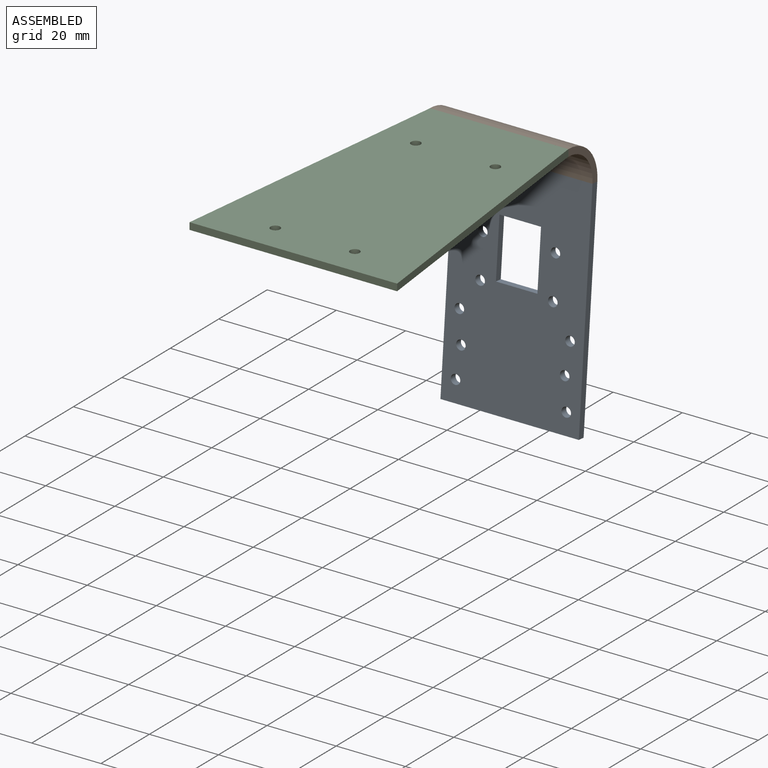
[diagram: assembled view]
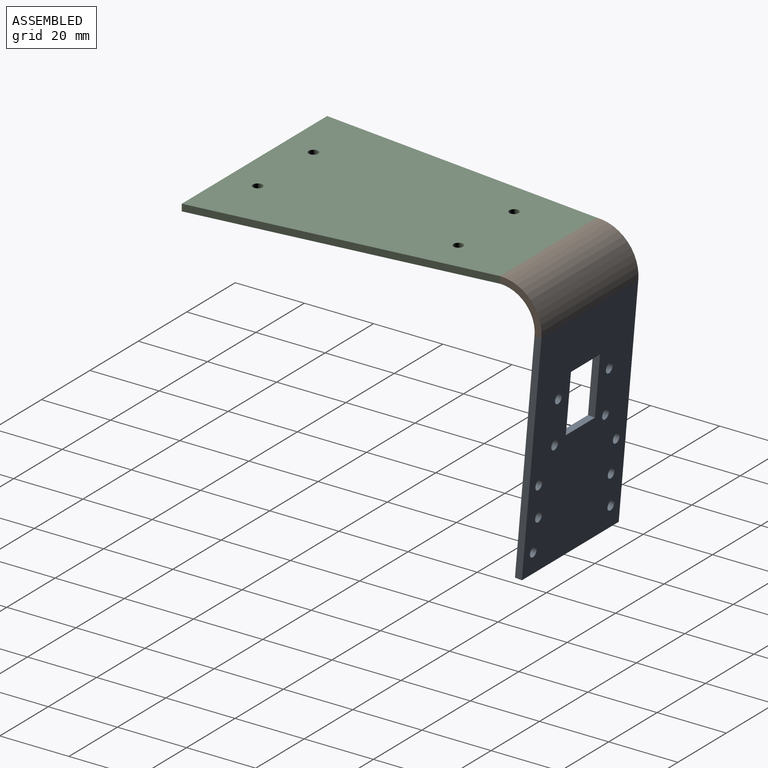
[diagram: assembled view, second angle]
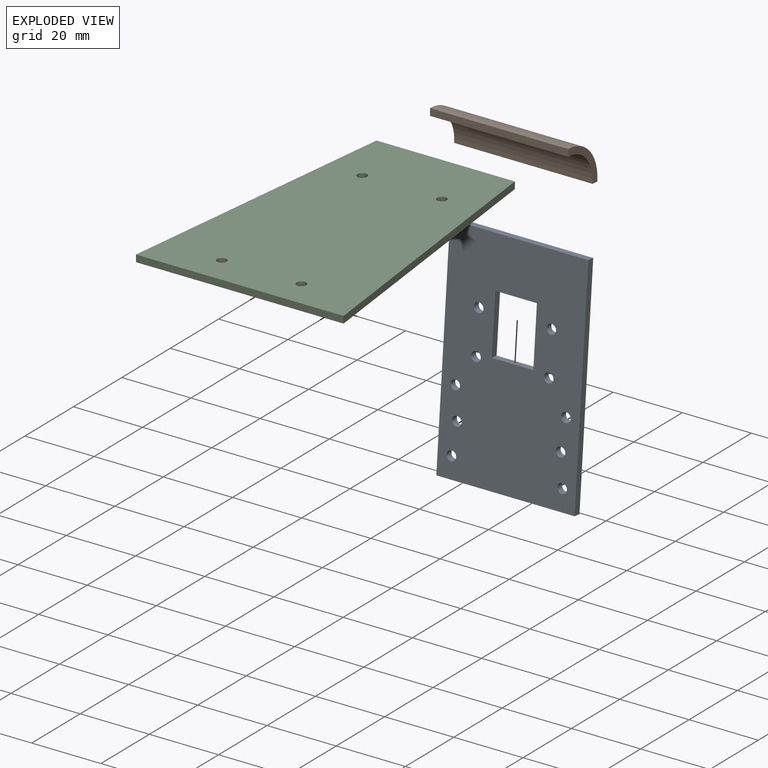
[diagram: exploded view]
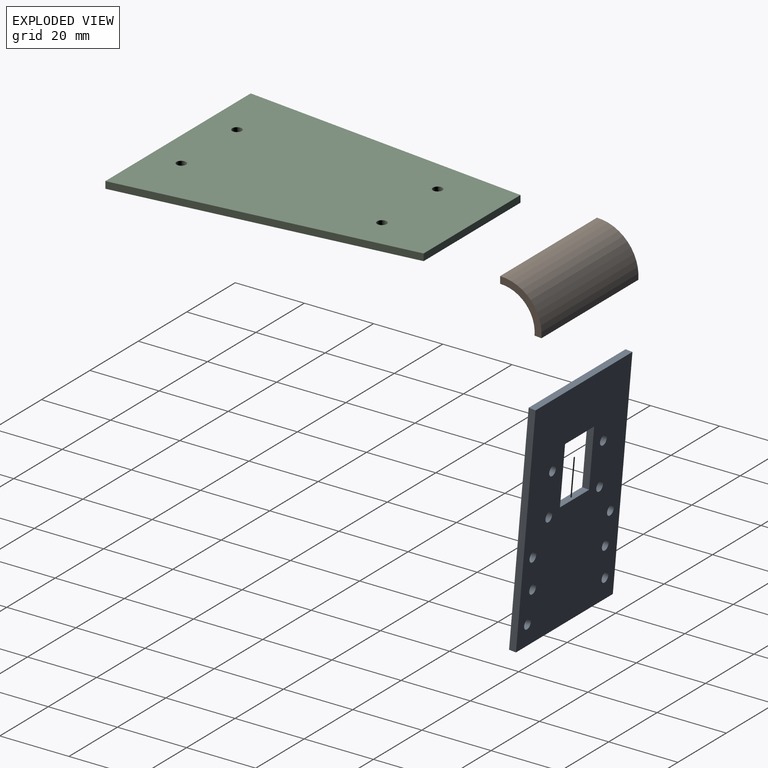
[diagram: exploded view, second angle]
ASSEMBLY  parts=3 mates=2
PART A: 20 faces, bbox 40x65x2 mm
  f0: plane 12x2mm, normal (0,-1,0), area 24mm2, adj f1,f7,f18,f19
  f1: plane 17x2mm, normal (-1,0,0), area 34mm2, adj f0,f2,f18,f19
  f2: plane 12x2mm, normal (0,1,0), area 24mm2, adj f1,f7,f18,f19
  f3: plane 40x2mm, normal (0,1,0), area 80mm2, adj f4,f16,f18,f19
  f4: plane 65x2mm, normal (-1,0,0), area 130mm2, adj f3,f5,f18,f19
  f5: plane 40x2mm, normal (0,-1,0), area 80mm2, adj f4,f16,f18,f19
  f6: cylinder r=1.38mm len=2.75mm, axis (0,0,-1), area 17.3mm2, adj f18,f19
  f7: plane 17x2mm, normal (1,0,0), area 34mm2, adj f0,f2,f18,f19
  f8: cylinder r=1.38mm len=2.75mm, axis (0,0,-1), area 17.3mm2, adj f18,f19
  f9: cylinder r=1.38mm len=2.75mm, axis (0,0,-1), area 17.3mm2, adj f18,f19
  f10: cylinder r=1.38mm len=2.75mm, axis (0,0,-1), area 17.3mm2, adj f18,f19
  f11: cylinder r=1.38mm len=2.75mm, axis (0,0,-1), area 17.3mm2, adj f18,f19
  f12: cylinder r=1.38mm len=2.75mm, axis (0,0,-1), area 17.3mm2, adj f18,f19
  f13: cylinder r=1.38mm len=2.75mm, axis (0,0,-1), area 17.3mm2, adj f18,f19
  f14: cylinder r=1.38mm len=2.75mm, axis (0,0,-1), area 17.3mm2, adj f18,f19
  f15: cylinder r=1.38mm len=2.75mm, axis (0,0,-1), area 17.3mm2, adj f18,f19
  f16: plane 65x2mm, normal (1,0,0), area 130mm2, adj f3,f5,f18,f19
  f17: cylinder r=1.38mm len=2.75mm, axis (0,0,-1), area 17.3mm2, adj f18,f19
  f18: plane 65x40mm, normal (0,0,1), area 2336.6mm2, adj f0,f1,f2,f3,f4,f5,f6,f7
  f19: plane 65x40mm, normal (0,0,-1), area 2336.6mm2, adj f0,f1,f2,f3,f4,f5,f6,f7
PART B: 6 faces, bbox 12x13x40 mm
  f0: plane 40x2mm, normal (-1,0,0), area 80mm2, adj f1,f3,f4,f5
  f1: cylinder r=12mm len=40mm, axis (0,0,-1), area 795.9mm2, adj f0,f2,f4,f5
  f2: plane 40x1.99mm, normal (-0.09,1,0), area 80mm2, adj f1,f3,f4,f5
  f3: cylinder r=10mm len=40mm, axis (0,0,-1), area 663.2mm2, adj f0,f2,f4,f5
  f4: plane 13.05x12mm, normal (0,0,1), area 36.5mm2, adj f0,f1,f2,f3
  f5: plane 13.05x12mm, normal (0,0,-1), area 36.5mm2, adj f0,f1,f2,f3
PART C: 10 faces, bbox 60x85x2 mm
  f0: plane 60x2mm, normal (0,-1,0), area 120mm2, adj f1,f4,f8,f9
  f1: plane 85x10mm, normal (0.99,0.12,0), area 171.2mm2, adj f0,f2,f8,f9
  f2: plane 40x2mm, normal (0,1,0), area 80mm2, adj f1,f4,f8,f9
  f3: cylinder r=1.38mm len=2.75mm, axis (0,0,-1), area 17.3mm2, adj f8,f9
  f4: plane 85x10mm, normal (-0.99,0.12,0), area 171.2mm2, adj f0,f2,f8,f9
  f5: cylinder r=1.38mm len=2.75mm, axis (0,0,-1), area 17.3mm2, adj f8,f9
  f6: cylinder r=1.38mm len=2.75mm, axis (0,0,-1), area 17.3mm2, adj f8,f9
  f7: cylinder r=1.38mm len=2.75mm, axis (0,0,-1), area 17.3mm2, adj f8,f9
  f8: plane 85x60mm, normal (0,0,1), area 4226.2mm2, adj f0,f1,f2,f3,f4,f5,f6,f7
  f9: plane 85x60mm, normal (0,0,-1), area 4226.2mm2, adj f0,f1,f2,f3,f4,f5,f6,f7
PLACE A rot(axis=(-1,0,0),95deg) t=(35.22,15.65,41.45)mm
PLACE B rot(axis=(-0.58,-0.58,0.58),120deg) t=(55.22,11.26,106.04)mm
PLACE C t=(35.22,-73.74,116.04)mm
MATE fastened B.f0 <-> C.f2  axis (0,-1,0) through (35.22,11.26,117.04)mm
MATE fastened B.f2 <-> A.f5  axis (0,-0.09,-1) through (35.22,22.22,105.08)mm
